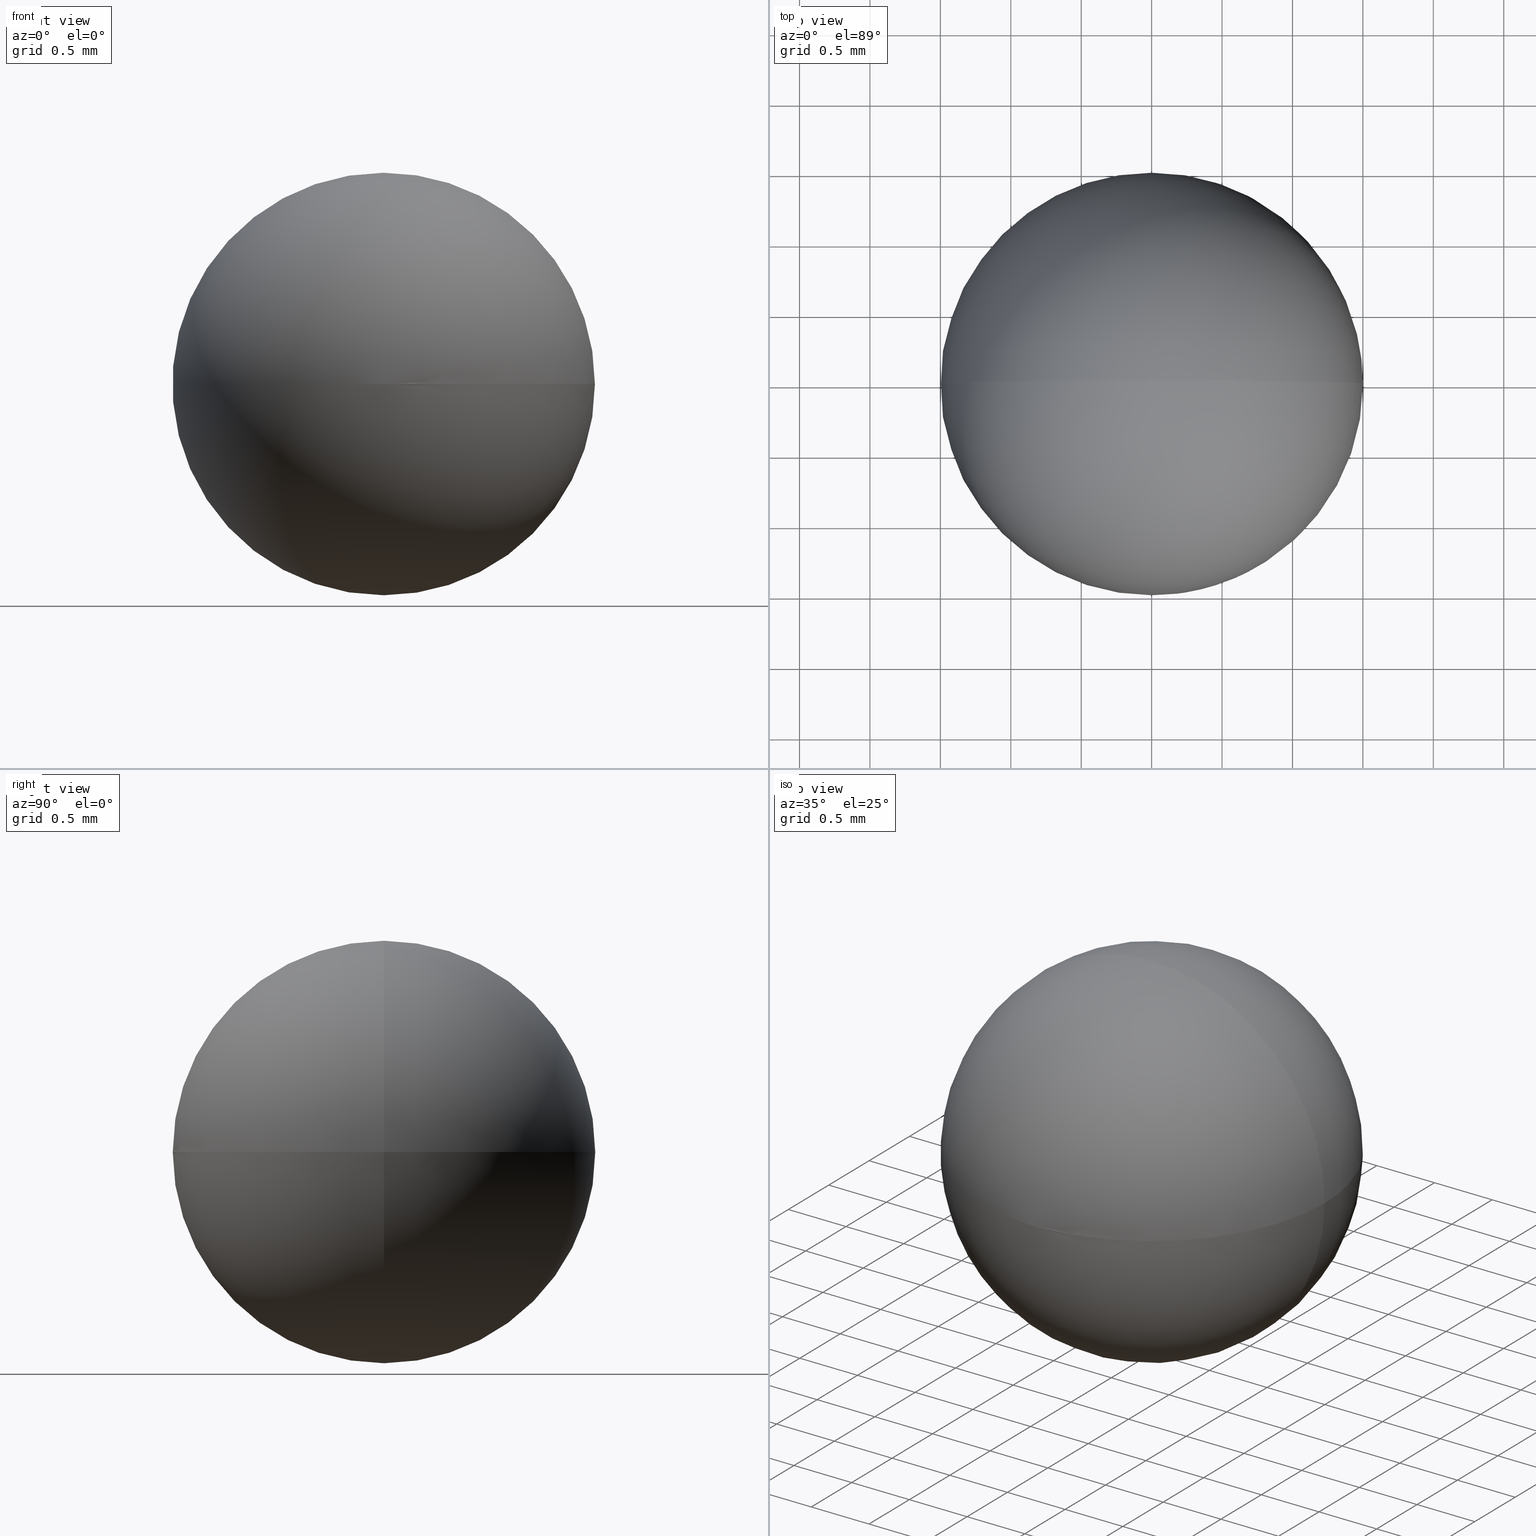
[diagram: canonical four-view strip — front | top / right | iso, engineering-drawing reading convention]
A machine part, canonical four-view strip (front | top / right | iso — engineering-drawing reading convention). The complete STEP part file that produces these views, byte-faithful:
ISO-10303-21;
HEADER;
FILE_DESCRIPTION (( 'STEP AP203' ),
    '1' );
FILE_NAME ('160002.STEP',
    '2019-06-05T05:39:16',
    ( '' ),
    ( '' ),
    'SwSTEP 2.0',
    'SolidWorks 2016',
    '' );
FILE_SCHEMA (( 'CONFIG_CONTROL_DESIGN' ));
ENDSEC;

DATA;
#1 = COORDINATED_UNIVERSAL_TIME_OFFSET ( 8, 0, .AHEAD. ) ;
#2 = LOCAL_TIME ( 13, 39, 16.00000000000000000, #94 ) ;
#3 = DIRECTION ( 'NONE',  ( 1.000000000000000000, 1.224646799147353200E-016, 0.0000000000000000000 ) ) ;
#4 = APPROVAL_DATE_TIME ( #154, #53 ) ;
#5 = COORDINATED_UNIVERSAL_TIME_OFFSET ( 8, 0, .AHEAD. ) ;
#6 = PERSON_AND_ORGANIZATION_ROLE ( 'creator' ) ;
#7 = APPROVAL ( #56, 'δָ��' ) ;
#8 = PERSON_AND_ORGANIZATION_ROLE ( 'creator' ) ;
#9 = PERSON_AND_ORGANIZATION_ROLE ( 'classification_officer' ) ;
#10 = PERSON_AND_ORGANIZATION ( #128, #45 ) ;
#11 = DATE_AND_TIME ( #127, #199 ) ;
#12 = CC_DESIGN_DATE_AND_TIME_ASSIGNMENT ( #191, #17, ( #143 ) ) ;
#13 = UNCERTAINTY_MEASURE_WITH_UNIT (LENGTH_MEASURE( 1.000000000000000100E-005 ), #193, 'distance_accuracy_value', 'NONE');
#14 = SPHERICAL_SURFACE ( 'NONE', #176, 1.500000000000000200 ) ;
#15 = CARTESIAN_POINT ( 'NONE',  ( 0.0000000000000000000, 0.0000000000000000000, 0.0000000000000000000 ) ) ;
#16 = DATE_AND_TIME ( #161, #103 ) ;
#17 = DATE_TIME_ROLE ( 'creation_date' ) ;
#18 = SPHERICAL_SURFACE ( 'NONE', #107, 1.500000000000000200 ) ;
#19 = APPLICATION_PROTOCOL_DEFINITION ( 'international standard', 'config_control_design', 1994, #140 ) ;
#20 = MECHANICAL_CONTEXT ( 'NONE', #140, 'mechanical' ) ;
#21 = PERSON_AND_ORGANIZATION ( #128, #45 ) ;
#22 = ORIENTED_EDGE ( 'NONE', *, *, #72, .T. ) ;
#23 = DESIGN_CONTEXT ( 'detailed design', #71, 'design' ) ;
#24 = CC_DESIGN_SECURITY_CLASSIFICATION ( #149, ( #138 ) ) ;
#25 = DATE_AND_TIME ( #105, #150 ) ;
#26 = CALENDAR_DATE ( 2019, 5, 6 ) ;
#27 = LOCAL_TIME ( 13, 39, 16.00000000000000000, #86 ) ;
#28 = CC_DESIGN_PERSON_AND_ORGANIZATION_ASSIGNMENT ( #82, #84, ( #177 ) ) ;
#29 = DIRECTION ( 'NONE',  ( 0.0000000000000000000, 1.000000000000000000, -0.0000000000000000000 ) ) ;
#30 = CARTESIAN_POINT ( 'NONE',  ( 0.0000000000000000000, 0.0000000000000000000, 0.0000000000000000000 ) ) ;
#31 = PERSON_AND_ORGANIZATION ( #128, #45 ) ;
#32 = APPROVAL_ROLE ( '' ) ;
#33 = ORIENTED_EDGE ( 'NONE', *, *, #112, .T. ) ;
#34 = CC_DESIGN_APPROVAL ( #53, ( #63 ) ) ;
#35 = APPROVAL_ROLE ( '' ) ;
#36 = AXIS2_PLACEMENT_3D ( 'NONE', #49, #164, #68 ) ;
#37 = PERSON_AND_ORGANIZATION_ROLE ( 'design_supplier' ) ;
#38 = PERSON_AND_ORGANIZATION ( #128, #45 ) ;
#39 = PERSON_AND_ORGANIZATION_ROLE ( 'design_owner' ) ;
#40 = PRODUCT_DEFINITION_FORMATION_WITH_SPECIFIED_SOURCE ( '�κ�', '', #177, .NOT_KNOWN. ) ;
#41 = DATE_AND_TIME ( #163, #129 ) ;
#42 = PERSON_AND_ORGANIZATION ( #128, #45 ) ;
#43 = PERSON_AND_ORGANIZATION ( #128, #45 ) ;
#44 = PERSON_AND_ORGANIZATION ( #128, #45 ) ;
#45 = ORGANIZATION ( 'δָ��', 'δָ��', '' ) ;
#46 = MANIFOLD_SOLID_BREP ( '��ת2', #135 ) ;
#47 = PRODUCT ( '160002', '160002', '', ( #170 ) ) ;
#48 = CC_DESIGN_APPROVAL ( #7, ( #40 ) ) ;
#49 = CARTESIAN_POINT ( 'NONE',  ( 0.0000000000000000000, 0.0000000000000000000, 0.0000000000000000000 ) ) ;
#50 = PRODUCT_DEFINITION_SHAPE ( 'NONE', 'NONE',  #63 ) ;
#51 = CARTESIAN_POINT ( 'NONE',  ( 0.0000000000000000000, 0.0000000000000000000, 0.0000000000000000000 ) ) ;
#52 = PERSON_AND_ORGANIZATION ( #128, #45 ) ;
#53 = APPROVAL ( #137, 'δָ��' ) ;
#54 = APPROVAL_STATUS ( 'not_yet_approved' ) ;
#55 = DATE_TIME_ROLE ( 'classification_date' ) ;
#56 = APPROVAL_STATUS ( 'not_yet_approved' ) ;
#57 = COORDINATED_UNIVERSAL_TIME_OFFSET ( 8, 0, .AHEAD. ) ;
#58 = APPROVAL_ROLE ( '' ) ;
#59 = CC_DESIGN_PERSON_AND_ORGANIZATION_ASSIGNMENT ( #44, #98, ( #63 ) ) ;
#60 = ORIENTED_EDGE ( 'NONE', *, *, #112, .F. ) ;
#61 = COORDINATED_UNIVERSAL_TIME_OFFSET ( 8, 0, .AHEAD. ) ;
#62 = FACE_OUTER_BOUND ( 'NONE', #70, .T. ) ;
#63 = PRODUCT_DEFINITION ( 'δ֪', '', #40, #178 ) ;
#64 = PERSON_AND_ORGANIZATION ( #128, #45 ) ;
#65 = DIRECTION ( 'NONE',  ( 0.0000000000000000000, 0.0000000000000000000, 1.000000000000000000 ) ) ;
#66 = CALENDAR_DATE ( 2019, 5, 6 ) ;
#67 = DIRECTION ( 'NONE',  ( 1.000000000000000000, 0.0000000000000000000, 0.0000000000000000000 ) ) ;
#68 = DIRECTION ( 'NONE',  ( 1.000000000000000000, 0.0000000000000000000, 0.0000000000000000000 ) ) ;
#69 = PERSON_AND_ORGANIZATION ( #128, #45 ) ;
#70 = EDGE_LOOP ( 'NONE', ( #60, #22 ) ) ;
#71 = APPLICATION_CONTEXT ( 'configuration controlled 3d designs of mechanical parts and assemblies' ) ;
#72 = EDGE_CURVE ( 'NONE', #139, #90, #188, .T. ) ;
#73 = APPROVAL_STATUS ( 'not_yet_approved' ) ;
#74 = CC_DESIGN_PERSON_AND_ORGANIZATION_ASSIGNMENT ( #81, #8, ( #40 ) ) ;
#75 = COORDINATED_UNIVERSAL_TIME_OFFSET ( 8, 0, .AHEAD. ) ;
#76 = PERSON_AND_ORGANIZATION ( #128, #45 ) ;
#77 = CC_DESIGN_PERSON_AND_ORGANIZATION_ASSIGNMENT ( #42, #39, ( #47 ) ) ;
#78 = APPROVAL_DATE_TIME ( #195, #7 ) ;
#79 =( NAMED_UNIT ( * ) SI_UNIT ( $, .STERADIAN. ) SOLID_ANGLE_UNIT ( ) );
#80 = SECURITY_CLASSIFICATION ( '', '', #104 ) ;
#81 = PERSON_AND_ORGANIZATION ( #128, #45 ) ;
#82 = PERSON_AND_ORGANIZATION ( #128, #45 ) ;
#83 = DATE_TIME_ROLE ( 'creation_date' ) ;
#84 = PERSON_AND_ORGANIZATION_ROLE ( 'design_owner' ) ;
#85 = CALENDAR_DATE ( 2019, 5, 6 ) ;
#86 = COORDINATED_UNIVERSAL_TIME_OFFSET ( 8, 0, .AHEAD. ) ;
#87 = SHAPE_DEFINITION_REPRESENTATION ( #50, #158 ) ;
#88 = APPROVAL ( #54, 'δָ��' ) ;
#89 = AXIS2_PLACEMENT_3D ( 'NONE', #15, #194, #3 ) ;
#90 = VERTEX_POINT ( 'NONE', #113 ) ;
#91 = PERSON_AND_ORGANIZATION ( #128, #45 ) ;
#92 = CC_DESIGN_PERSON_AND_ORGANIZATION_ASSIGNMENT ( #31, #37, ( #40 ) ) ;
#93 = CC_DESIGN_PERSON_AND_ORGANIZATION_ASSIGNMENT ( #43, #6, ( #138 ) ) ;
#94 = COORDINATED_UNIVERSAL_TIME_OFFSET ( 8, 0, .AHEAD. ) ;
#95 = DIRECTION ( 'NONE',  ( 1.000000000000000000, 0.0000000000000000000, 0.0000000000000000000 ) ) ;
#96 = CALENDAR_DATE ( 2019, 5, 6 ) ;
#97 = CARTESIAN_POINT ( 'NONE',  ( 0.0000000000000000000, 0.0000000000000000000, 0.0000000000000000000 ) ) ;
#98 = PERSON_AND_ORGANIZATION_ROLE ( 'creator' ) ;
#99 = PRODUCT_RELATED_PRODUCT_CATEGORY ( 'detail', '', ( #47 ) ) ;
#100 = ADVANCED_FACE ( 'NONE', ( #162 ), #18, .T. ) ;
#101 = APPROVAL_STATUS ( 'not_yet_approved' ) ;
#102 = AXIS2_PLACEMENT_3D ( 'NONE', #97, #172, #197 ) ;
#103 = LOCAL_TIME ( 13, 39, 16.00000000000000000, #57 ) ;
#104 = SECURITY_CLASSIFICATION_LEVEL ( 'unclassified' ) ;
#105 = CALENDAR_DATE ( 2019, 5, 6 ) ;
#106 = CC_DESIGN_PERSON_AND_ORGANIZATION_ASSIGNMENT ( #52, #9, ( #80 ) ) ;
#107 = AXIS2_PLACEMENT_3D ( 'NONE', #114, #192, #95 ) ;
#108 = PRODUCT_DEFINITION_SHAPE ( 'NONE', 'NONE',  #143 ) ;
#109 = COORDINATED_UNIVERSAL_TIME_OFFSET ( 8, 0, .AHEAD. ) ;
#110 = CALENDAR_DATE ( 2019, 5, 6 ) ;
#111 = CC_DESIGN_DATE_AND_TIME_ASSIGNMENT ( #203, #168, ( #149 ) ) ;
#112 = EDGE_CURVE ( 'NONE', #139, #90, #186, .T. ) ;
#113 = CARTESIAN_POINT ( 'NONE',  ( 9.184850993605150900E-017, 0.0000000000000000000, -1.500000000000000200 ) ) ;
#114 = CARTESIAN_POINT ( 'NONE',  ( 0.0000000000000000000, 0.0000000000000000000, 0.0000000000000000000 ) ) ;
#115 = APPROVAL ( #73, 'δָ��' ) ;
#116 = APPLICATION_CONTEXT ( 'configuration controlled 3d designs of mechanical parts and assemblies' ) ;
#117 = AXIS2_PLACEMENT_3D ( 'NONE', #30, #29, #65 ) ;
#118 = LOCAL_TIME ( 13, 39, 16.00000000000000000, #1 ) ;
#119 = APPLICATION_PROTOCOL_DEFINITION ( 'international standard', 'config_control_design', 1994, #167 ) ;
#120 = SECURITY_CLASSIFICATION_LEVEL ( 'unclassified' ) ;
#121 = APPROVAL_ROLE ( '' ) ;
#122 = APPROVAL_DATE_TIME ( #159, #115 ) ;
#123 = CALENDAR_DATE ( 2019, 5, 6 ) ;
#124 = APPROVAL_DATE_TIME ( #166, #182 ) ;
#125 = CC_DESIGN_PERSON_AND_ORGANIZATION_ASSIGNMENT ( #91, #184, ( #149 ) ) ;
#126 = CC_DESIGN_PERSON_AND_ORGANIZATION_ASSIGNMENT ( #76, #151, ( #143 ) ) ;
#127 = CALENDAR_DATE ( 2019, 5, 6 ) ;
#128 = PERSON ( 'δָ��', 'δָ��', 'δָ��', ('δָ��'), ('δָ��'), ('δָ��') ) ;
#129 = LOCAL_TIME ( 13, 39, 16.00000000000000000, #5 ) ;
#130 = CC_DESIGN_DATE_AND_TIME_ASSIGNMENT ( #41, #55, ( #80 ) ) ;
#131 = CC_DESIGN_PERSON_AND_ORGANIZATION_ASSIGNMENT ( #171, #148, ( #138 ) ) ;
#132 = APPROVAL_PERSON_ORGANIZATION ( #21, #53, #121 ) ;
#133 =( NAMED_UNIT ( * ) PLANE_ANGLE_UNIT ( ) SI_UNIT ( $, .RADIAN. ) );
#134 = APPROVAL_PERSON_ORGANIZATION ( #38, #7, #152 ) ;
#135 = CLOSED_SHELL ( 'NONE', ( #141, #100 ) ) ;
#136 = APPLICATION_PROTOCOL_DEFINITION ( 'international standard', 'config_control_design', 1994, #71 ) ;
#137 = APPROVAL_STATUS ( 'not_yet_approved' ) ;
#138 = PRODUCT_DEFINITION_FORMATION_WITH_SPECIFIED_SOURCE ( '�κ�', '', #47, .NOT_KNOWN. ) ;
#139 = VERTEX_POINT ( 'NONE', #146 ) ;
#140 = APPLICATION_CONTEXT ( 'configuration controlled 3d designs of mechanical parts and assemblies' ) ;
#141 = ADVANCED_FACE ( 'NONE', ( #62 ), #14, .T. ) ;
#142 = COORDINATED_UNIVERSAL_TIME_OFFSET ( 8, 0, .AHEAD. ) ;
#143 = PRODUCT_DEFINITION ( 'δ֪', '', #138, #23 ) ;
#144 = APPROVAL_PERSON_ORGANIZATION ( #64, #157, #32 ) ;
#145 = DIRECTION ( 'NONE',  ( 0.0000000000000000000, -1.000000000000000000, -0.0000000000000000000 ) ) ;
#146 = CARTESIAN_POINT ( 'NONE',  ( 9.184850993605150900E-017, 0.0000000000000000000, 1.500000000000000200 ) ) ;
#147 = CC_DESIGN_DATE_AND_TIME_ASSIGNMENT ( #11, #83, ( #63 ) ) ;
#148 = PERSON_AND_ORGANIZATION_ROLE ( 'design_supplier' ) ;
#149 = SECURITY_CLASSIFICATION ( '', '', #120 ) ;
#150 = LOCAL_TIME ( 13, 39, 16.00000000000000000, #61 ) ;
#151 = PERSON_AND_ORGANIZATION_ROLE ( 'creator' ) ;
#152 = APPROVAL_ROLE ( '' ) ;
#153 = APPLICATION_PROTOCOL_DEFINITION ( 'international standard', 'config_control_design', 1994, #116 ) ;
#154 = DATE_AND_TIME ( #85, #187 ) ;
#155 = APPROVAL_DATE_TIME ( #16, #157 ) ;
#156 = EDGE_LOOP ( 'NONE', ( #201, #33 ) ) ;
#157 = APPROVAL ( #181, 'δָ��' ) ;
#158 = ADVANCED_BREP_SHAPE_REPRESENTATION ( '160002', ( #46, #36 ), #198 ) ;
#159 = DATE_AND_TIME ( #123, #118 ) ;
#160 = CC_DESIGN_APPROVAL ( #115, ( #80 ) ) ;
#161 = CALENDAR_DATE ( 2019, 5, 6 ) ;
#162 = FACE_OUTER_BOUND ( 'NONE', #156, .T. ) ;
#163 = CALENDAR_DATE ( 2019, 5, 6 ) ;
#164 = DIRECTION ( 'NONE',  ( 0.0000000000000000000, 0.0000000000000000000, 1.000000000000000000 ) ) ;
#165 = APPROVAL_PERSON_ORGANIZATION ( #69, #115, #185 ) ;
#166 = DATE_AND_TIME ( #110, #2 ) ;
#167 = APPLICATION_CONTEXT ( 'configuration controlled 3d designs of mechanical parts and assemblies' ) ;
#168 = DATE_TIME_ROLE ( 'classification_date' ) ;
#169 = CC_DESIGN_APPROVAL ( #157, ( #138 ) ) ;
#170 = MECHANICAL_CONTEXT ( 'NONE', #116, 'mechanical' ) ;
#171 = PERSON_AND_ORGANIZATION ( #128, #45 ) ;
#172 = DIRECTION ( 'NONE',  ( 0.0000000000000000000, 0.0000000000000000000, 1.000000000000000000 ) ) ;
#173 = APPROVAL_DATE_TIME ( #25, #88 ) ;
#174 = APPROVAL_PERSON_ORGANIZATION ( #183, #182, #35 ) ;
#175 = CC_DESIGN_SECURITY_CLASSIFICATION ( #80, ( #40 ) ) ;
#176 = AXIS2_PLACEMENT_3D ( 'NONE', #51, #145, #67 ) ;
#177 = PRODUCT ( '160002', '160002', '', ( #20 ) ) ;
#178 = DESIGN_CONTEXT ( 'detailed design', #167, 'design' ) ;
#179 = APPROVAL_PERSON_ORGANIZATION ( #10, #88, #58 ) ;
#180 = CC_DESIGN_APPROVAL ( #88, ( #149 ) ) ;
#181 = APPROVAL_STATUS ( 'not_yet_approved' ) ;
#182 = APPROVAL ( #101, 'δָ��' ) ;
#183 = PERSON_AND_ORGANIZATION ( #128, #45 ) ;
#184 = PERSON_AND_ORGANIZATION_ROLE ( 'classification_officer' ) ;
#185 = APPROVAL_ROLE ( '' ) ;
#186 = CIRCLE ( 'NONE', #117, 1.500000000000000200 ) ;
#187 = LOCAL_TIME ( 13, 39, 16.00000000000000000, #200 ) ;
#188 = CIRCLE ( 'NONE', #89, 1.500000000000000200 ) ;
#189 = PRODUCT_RELATED_PRODUCT_CATEGORY ( 'detail', '', ( #177 ) ) ;
#190 = LOCAL_TIME ( 13, 39, 16.00000000000000000, #142 ) ;
#191 = DATE_AND_TIME ( #26, #196 ) ;
#192 = DIRECTION ( 'NONE',  ( 0.0000000000000000000, -1.000000000000000000, -0.0000000000000000000 ) ) ;
#193 =( LENGTH_UNIT ( ) NAMED_UNIT ( * ) SI_UNIT ( .MILLI., .METRE. ) );
#194 = DIRECTION ( 'NONE',  ( 1.224646799147353200E-016, -1.000000000000000000, 0.0000000000000000000 ) ) ;
#195 = DATE_AND_TIME ( #66, #27 ) ;
#196 = LOCAL_TIME ( 13, 39, 16.00000000000000000, #75 ) ;
#197 = DIRECTION ( 'NONE',  ( 1.000000000000000000, 0.0000000000000000000, 0.0000000000000000000 ) ) ;
#198 =( GEOMETRIC_REPRESENTATION_CONTEXT ( 3 ) GLOBAL_UNCERTAINTY_ASSIGNED_CONTEXT ( ( #13 ) ) GLOBAL_UNIT_ASSIGNED_CONTEXT ( ( #193, #133, #79 ) ) REPRESENTATION_CONTEXT ( 'NONE', 'WORKASPACE' ) );
#199 = LOCAL_TIME ( 13, 39, 16.00000000000000000, #109 ) ;
#200 = COORDINATED_UNIVERSAL_TIME_OFFSET ( 8, 0, .AHEAD. ) ;
#201 = ORIENTED_EDGE ( 'NONE', *, *, #72, .F. ) ;
#202 = CC_DESIGN_APPROVAL ( #182, ( #143 ) ) ;
#203 = DATE_AND_TIME ( #96, #190 ) ;
ENDSEC;
END-ISO-10303-21;
